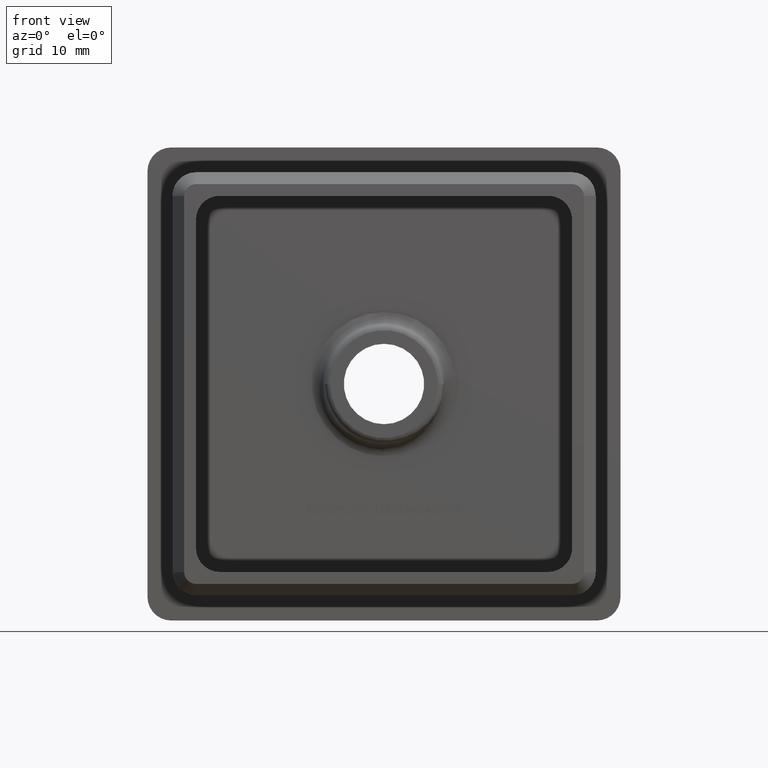
[diagram: clean part render]
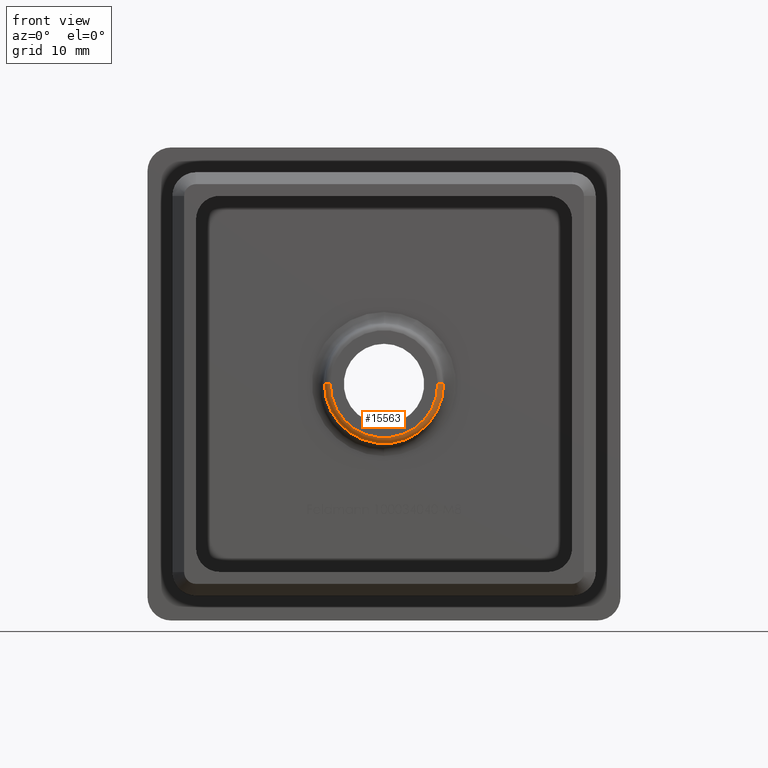
[diagram: same view with one face highlighted and labeled with its STEP entity id]
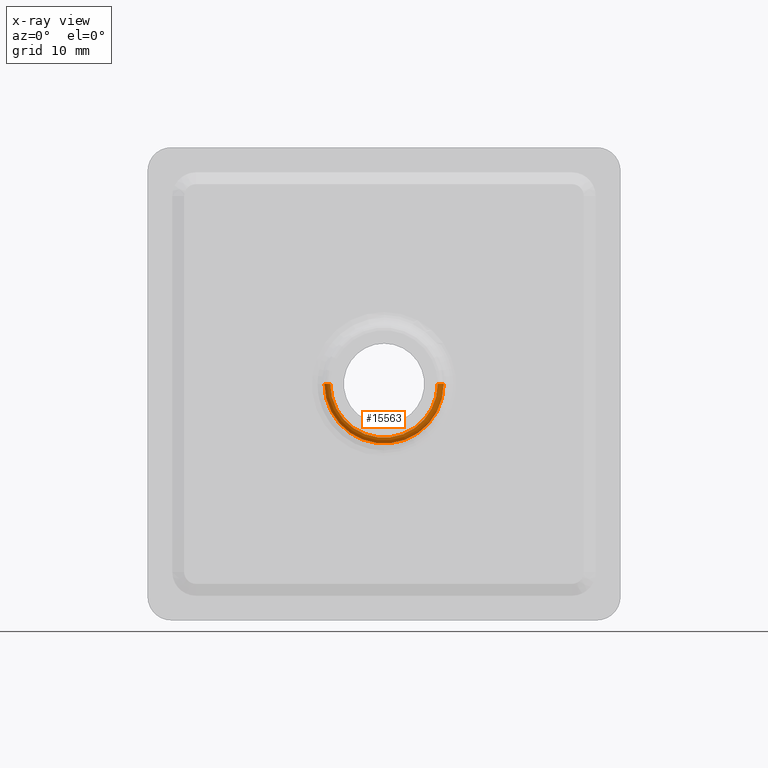
[diagram: x-ray of the same camera — body ghosted, the highlighted face saturated]
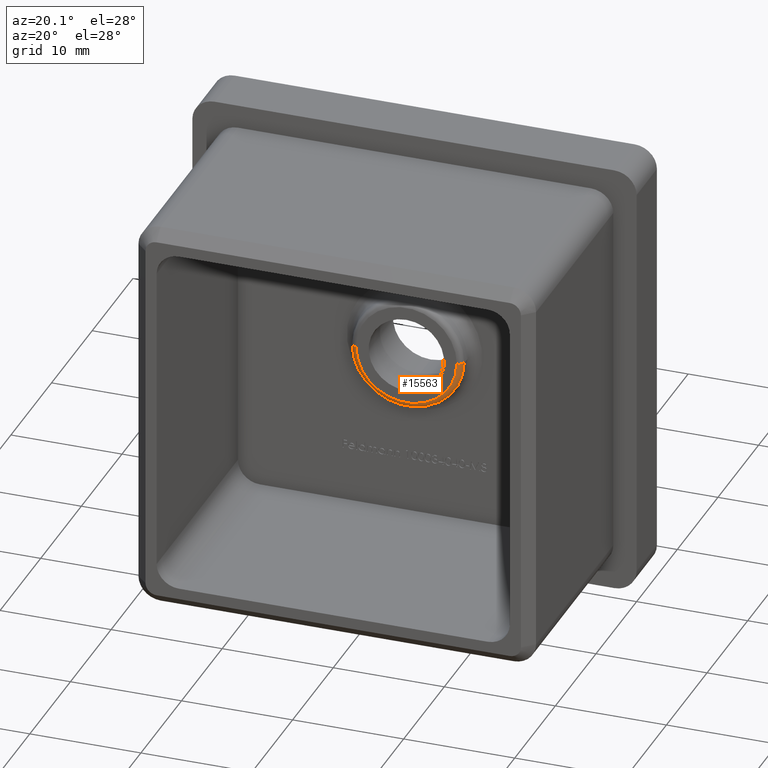
[diagram: same view with one face highlighted and labeled with its STEP entity id]
A machine part, front view. The second image highlights one B-rep face of the part: STEP entity #15563.
The next image is the same camera in x-ray: the body ghosted, the highlighted face saturated — about 0% of this face is hidden behind the body in this view.
A second angle (auxiliary view) of the same face is appended — the face is thin or edge-on in the first view.
In plain terms, the highlighted toroidal blend (fillet) surface has major radius 4.5418 mm and minor (blend) radius 0.5 mm.
Its self-contained STEP definition (entity closure, byte-faithful):
#1297 = VERTEX_POINT ( 'NONE', #12617 ) ;
#1410 = AXIS2_PLACEMENT_3D ( 'NONE', #11996, #13281, #7299 ) ;
#1868 = ORIENTED_EDGE ( 'NONE', *, *, #4225, .F. ) ;
#1872 = DIRECTION ( 'NONE',  ( 1.224646799147353500E-016, -1.000000000000000000, 0.0000000000000000000 ) ) ;
#1980 = VERTEX_POINT ( 'NONE', #5324 ) ;
#2105 = CIRCLE ( 'NONE', #14612, 4.541834412991284400 ) ;
#2669 = DIRECTION ( 'NONE',  ( 1.000000000000000000, 0.0000000000000000000, 1.224646799147353500E-016 ) ) ;
#2756 = AXIS2_PLACEMENT_3D ( 'NONE', #3693, #6193, #14049 ) ;
#3576 = FACE_OUTER_BOUND ( 'NONE', #16619, .T. ) ;
#3693 = CARTESIAN_POINT ( 'NONE',  ( 1.836970198721030400E-016, -1.500000000000000400, 0.0000000000000000000 ) ) ;
#4145 = AXIS2_PLACEMENT_3D ( 'NONE', #14448, #13206, #5451 ) ;
#4202 = AXIS2_PLACEMENT_3D ( 'NONE', #16886, #9327, #2669 ) ;
#4225 = EDGE_CURVE ( 'NONE', #1980, #10312, #14444, .T. ) ;
#5324 = CARTESIAN_POINT ( 'NONE',  ( 5.039931762037158000, -1.543577871373824000, 6.205925555203900700E-016 ) ) ;
#5451 = DIRECTION ( 'NONE',  ( 1.000000000000000000, 1.290734347618150500E-016, 0.0000000000000000000 ) ) ;
#5609 = ORIENTED_EDGE ( 'NONE', *, *, #7988, .T. ) ;
#5723 = DIRECTION ( 'NONE',  ( -1.000000000000000000, -9.548583888345160900E-017, 0.0000000000000000000 ) ) ;
#6193 = DIRECTION ( 'NONE',  ( -1.224646799147353500E-016, 1.000000000000000000, -0.0000000000000000000 ) ) ;
#6866 = ORIENTED_EDGE ( 'NONE', *, *, #15824, .F. ) ;
#6976 = ORIENTED_EDGE ( 'NONE', *, *, #16075, .F. ) ;
#7209 = CARTESIAN_POINT ( 'NONE',  ( -5.039931762037158000, -1.543577871373825300, 0.0000000000000000000 ) ) ;
#7299 = DIRECTION ( 'NONE',  ( -1.000000000000000000, 0.0000000000000000000, 0.0000000000000000000 ) ) ;
#7821 = CIRCLE ( 'NONE', #1410, 0.4999999999999995600 ) ;
#7988 = EDGE_CURVE ( 'NONE', #15638, #10312, #7821, .T. ) ;
#8066 = TOROIDAL_SURFACE ( 'NONE', #2756, 4.541834412991284400, 0.5000000000000000000 ) ;
#8684 = CIRCLE ( 'NONE', #4202, 0.4999999999999995600 ) ;
#9327 = DIRECTION ( 'NONE',  ( -1.224646799147353200E-016, -1.499759782661857900E-032, 1.000000000000000000 ) ) ;
#10312 = VERTEX_POINT ( 'NONE', #7209 ) ;
#11996 = CARTESIAN_POINT ( 'NONE',  ( -4.541834412991284400, -1.500000000000001100, 0.0000000000000000000 ) ) ;
#12617 = CARTESIAN_POINT ( 'NONE',  ( 4.541834412991284400, -2.000000000000000000, 5.867139638213479300E-016 ) ) ;
#13206 = DIRECTION ( 'NONE',  ( -1.224646799147353500E-016, 1.000000000000000000, -0.0000000000000000000 ) ) ;
#13281 = DIRECTION ( 'NONE',  ( 0.0000000000000000000, -0.0000000000000000000, -1.000000000000000000 ) ) ;
#14049 = DIRECTION ( 'NONE',  ( -1.000000000000000000, -1.224646799147353500E-016, 0.0000000000000000000 ) ) ;
#14444 = CIRCLE ( 'NONE', #4145, 5.039931762037158000 ) ;
#14448 = CARTESIAN_POINT ( 'NONE',  ( 1.890337699412631400E-016, -1.543577871373824600, 0.0000000000000000000 ) ) ;
#14612 = AXIS2_PLACEMENT_3D ( 'NONE', #14905, #1872, #5723 ) ;
#14905 = CARTESIAN_POINT ( 'NONE',  ( 2.449293598294706900E-016, -2.000000000000000400, 0.0000000000000000000 ) ) ;
#15563 = ADVANCED_FACE ( 'NONE', ( #3576 ), #8066, .T. ) ;
#15638 = VERTEX_POINT ( 'NONE', #15663 ) ;
#15663 = CARTESIAN_POINT ( 'NONE',  ( -4.541834412991284400, -2.000000000000000900, 0.0000000000000000000 ) ) ;
#15824 = EDGE_CURVE ( 'NONE', #15638, #1297, #2105, .T. ) ;
#16075 = EDGE_CURVE ( 'NONE', #1297, #1980, #8684, .T. ) ;
#16619 = EDGE_LOOP ( 'NONE', ( #6976, #6866, #5609, #1868 ) ) ;
#16886 = CARTESIAN_POINT ( 'NONE',  ( 4.541834412991284400, -1.499999999999999800, 5.562142976127074500E-016 ) ) ;